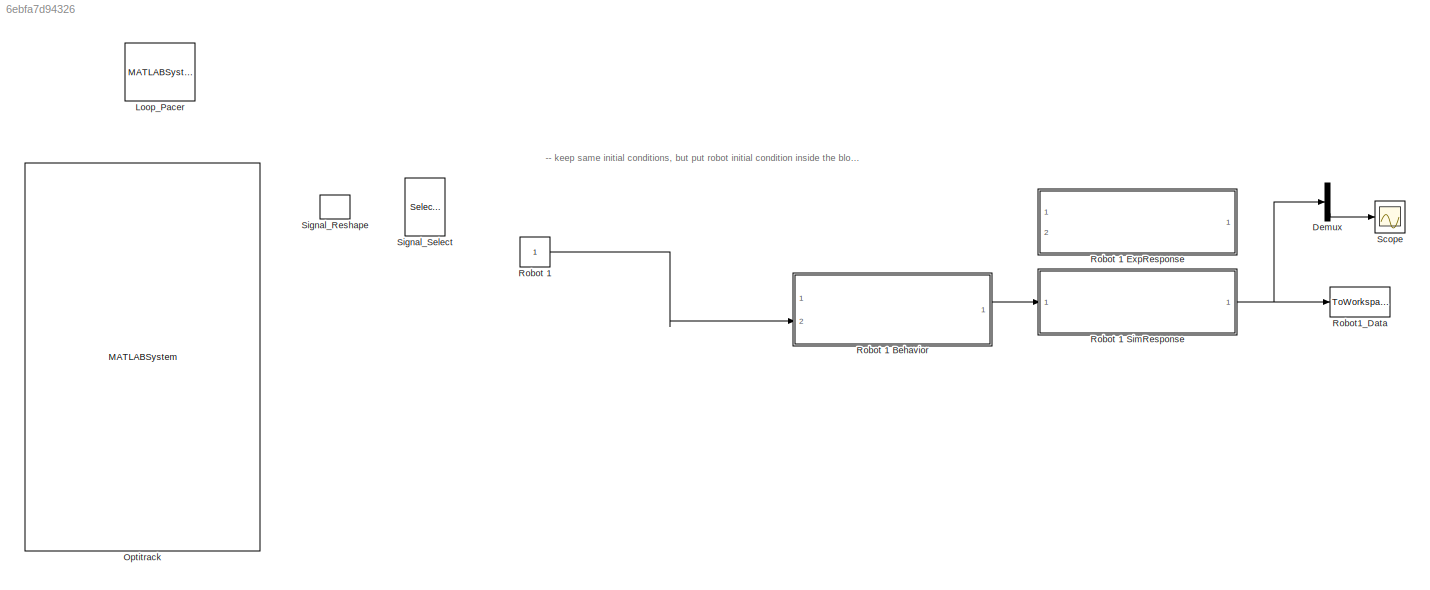
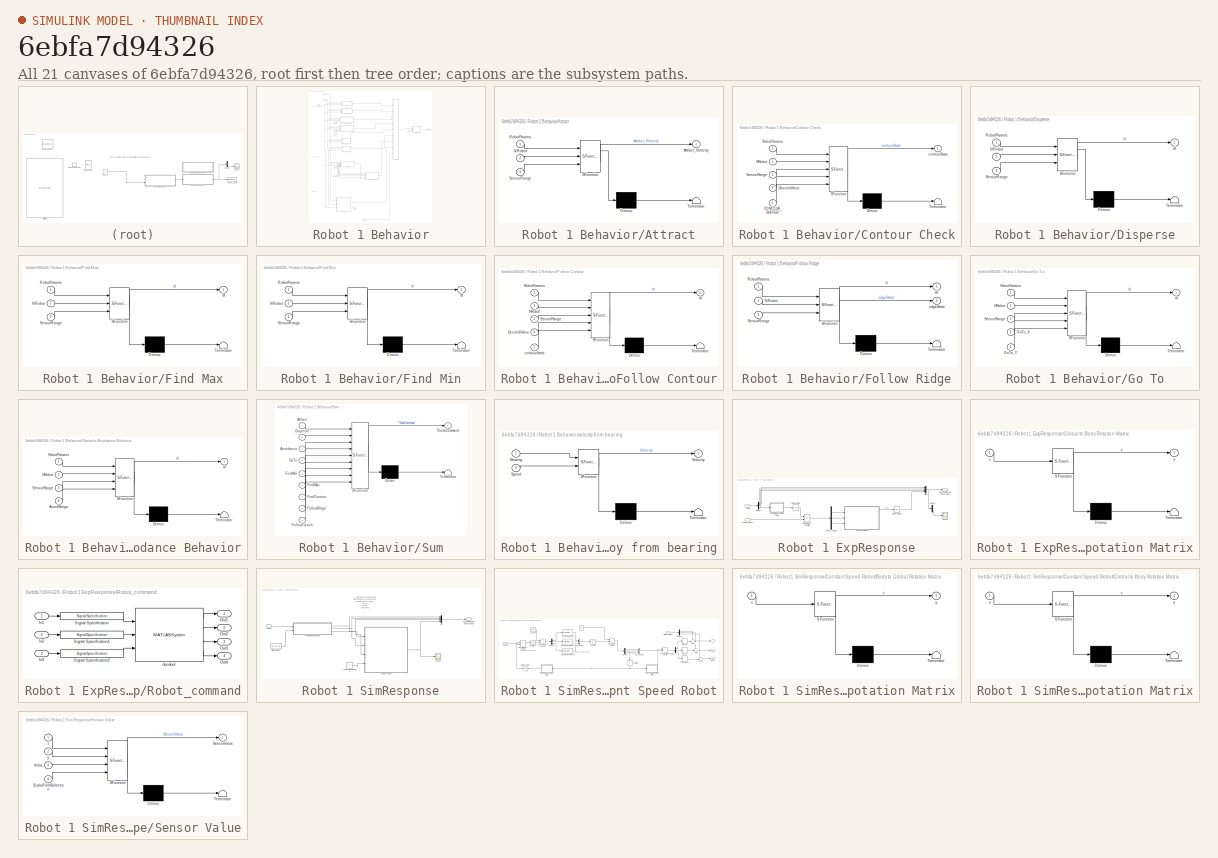
[diagram: thumbnail index - all 21 canvases of the model, root first then tree order]
MODEL slx_6ebfa7d94326
KIND model
CONFIG AbsTol = auto
CONFIG EnableMultiTasking = off
CONFIG FixedStep = 0.1
CONFIG MaxStep = auto
CONFIG MinStep = auto
CONFIG RelTol = 1e-3
CONFIG SampleTimeConstraint = Unconstrained
CONFIG Solver = VariableStepAuto
CONFIG SolverName = VariableStepAuto
CONFIG StartTime = 0.0
CONFIG StopTime = 20
BLOCK [Demux] Demux
  DisplayOption = bar
  Ports = [1, 4]
BLOCK [MATLABSystem] Loop_Pacer
  MaskDisplay = disp('LoopPacer');
  MaskType = LoopPacer
  Ports = []
  System = LoopPacer
  debug = on
  loopRate = 0.1
BLOCK [MATLABSystem] Optitrack
  MaskDisplay = disp('OptiTrackRigidBody');
  MaskType = OptiTrackRigidBody
  Ports = []
  System = OptiTrackRigidBody
  coordinateTransformationMatrix = [ 1, 0, 0; 0, 0, 1; 0, -1, 0 ]
  debug = on
  dllPath = <path>
  natNetClientAddress = 127.0.0.1
  natNetHostAddress = 127.0.0.1
  orientationFormat = Euler angles
  rigidBodyNames = { 'Nobody', 'Nobody2' }
  unicast = off
BLOCK [Constant] Robot 1
BLOCK [SubSystem] Robot 1 Behavior
  Ports = [2, 1]
  RequestExecContextInheritance = off
BLOCK [SubSystem] Robot 1 Behavior/Attract
  Commented = on
  ErrorFcn = Stateflow.Translate.translate
  PermitHierarchicalResolution = ExplicitOnly
  Ports = [3, 1]
  RequestExecContextInheritance = off
  SFBlockType = MATLAB Function
  TreatAsAtomicUnit = on
BLOCK [Demux] Robot 1 Behavior/Attract/ Demux 
  Outputs = 1
  Ports = [1, 1]
BLOCK [S-Function] Robot 1 Behavior/Attract/ SFunction 
  EnableBusSupport = on
  FunctionName = sf_sfun
  PortCounts = [3 2]
  Ports = [3, 2]
  SFcnIsStateOwnerBlock = off
  SFunctionDeploymentMode = off
  Tag = Stateflow S-Function Swarm_Robot_Base_2018b 131
BLOCK [Terminator] Robot 1 Behavior/Attract/ Terminator 
BLOCK [Outport] Robot 1 Behavior/Attract/Attract_Velocity
  IconDisplay = Port number
BLOCK [Inport] Robot 1 Behavior/Attract/NRobot
  IconDisplay = Port number
  Port = 2
BLOCK [Inport] Robot 1 Behavior/Attract/RobotParams
  IconDisplay = Port number
BLOCK [Inport] Robot 1 Behavior/Attract/SensorRange
  IconDisplay = Port number
  Port = 3
BLOCK [Constant] Robot 1 Behavior/Avoid Range
  Value = 0.6
BLOCK [Constant] Robot 1 Behavior/Constant9
  Commented = on
  Value = [0 0 0]
BLOCK [Constant] Robot 1 Behavior/Contour Buffer
BLOCK [SubSystem] Robot 1 Behavior/Contour Check
  ErrorFcn = Stateflow.Translate.translate
  PermitHierarchicalResolution = ExplicitOnly
  Ports = [5, 1]
  RequestExecContextInheritance = off
  SFBlockType = MATLAB Function
  TreatAsAtomicUnit = on
BLOCK [Demux] Robot 1 Behavior/Contour Check/ Demux 
  Outputs = 1
  Ports = [1, 1]
BLOCK [S-Function] Robot 1 Behavior/Contour Check/ SFunction 
  EnableBusSupport = on
  FunctionName = sf_sfun
  PortCounts = [5 2]
  Ports = [5, 2]
  SFcnIsStateOwnerBlock = off
  SFunctionDeploymentMode = off
  Tag = Stateflow S-Function Swarm_Robot_Base_2018b 1
BLOCK [Terminator] Robot 1 Behavior/Contour Check/ Terminator 
BLOCK [Inport] Robot 1 Behavior/Contour Check/CONTOUR_BUFFER
  IconDisplay = Port number
  Port = 5
BLOCK [Inport] Robot 1 Behavior/Contour Check/DesiredValue
  IconDisplay = Port number
  Port = 4
BLOCK [Inport] Robot 1 Behavior/Contour Check/NRobot
  IconDisplay = Port number
  Port = 2
BLOCK [Inport] Robot 1 Behavior/Contour Check/RobotParams
  IconDisplay = Port number
BLOCK [Inport] Robot 1 Behavior/Contour Check/SensorRange
  IconDisplay = Port number
  Port = 3
BLOCK [Outport] Robot 1 Behavior/Contour Check/contourState
  IconDisplay = Port number
BLOCK [Constant] Robot 1 Behavior/Desired Value
  Value = 2
BLOCK [SubSystem] Robot 1 Behavior/Disperse
  Commented = on
  ErrorFcn = Stateflow.Translate.translate
  PermitHierarchicalResolution = ExplicitOnly
  Ports = [3, 1]
  RequestExecContextInheritance = off
  SFBlockType = MATLAB Function
  TreatAsAtomicUnit = on
BLOCK [Demux] Robot 1 Behavior/Disperse/ Demux 
  Outputs = 1
  Ports = [1, 1]
BLOCK [S-Function] Robot 1 Behavior/Disperse/ SFunction 
  EnableBusSupport = on
  FunctionName = sf_sfun
  PortCounts = [3 2]
  Ports = [3, 2]
  SFcnIsStateOwnerBlock = off
  SFunctionDeploymentMode = off
  Tag = Stateflow S-Function Swarm_Robot_Base_2018b 13
BLOCK [Terminator] Robot 1 Behavior/Disperse/ Terminator 
BLOCK [Inport] Robot 1 Behavior/Disperse/NRobot
  IconDisplay = Port number
  Port = 2
BLOCK [Inport] Robot 1 Behavior/Disperse/RobotParams
  IconDisplay = Port number
BLOCK [Inport] Robot 1 Behavior/Disperse/SensorRange
  IconDisplay = Port number
  Port = 3
BLOCK [Outport] Robot 1 Behavior/Disperse/Vf
  IconDisplay = Port number
BLOCK [SubSystem] Robot 1 Behavior/Find Max
  Commented = on
  ErrorFcn = Stateflow.Translate.translate
  PermitHierarchicalResolution = ExplicitOnly
  Ports = [3, 1]
  RequestExecContextInheritance = off
  SFBlockType = MATLAB Function
  TreatAsAtomicUnit = on
BLOCK [Demux] Robot 1 Behavior/Find Max/ Demux 
  Outputs = 1
  Ports = [1, 1]
BLOCK [S-Function] Robot 1 Behavior/Find Max/ SFunction 
  EnableBusSupport = on
  FunctionName = sf_sfun
  PortCounts = [3 2]
  Ports = [3, 2]
  SFcnIsStateOwnerBlock = off
  SFunctionDeploymentMode = off
  Tag = Stateflow S-Function Swarm_Robot_Base_2018b 2
BLOCK [Terminator] Robot 1 Behavior/Find Max/ Terminator 
BLOCK [Inport] Robot 1 Behavior/Find Max/NRobot
  IconDisplay = Port number
  Port = 2
BLOCK [Inport] Robot 1 Behavior/Find Max/RobotParams
  IconDisplay = Port number
BLOCK [Inport] Robot 1 Behavior/Find Max/SensorRange
  IconDisplay = Port number
  Port = 3
BLOCK [Outport] Robot 1 Behavior/Find Max/Vf
  IconDisplay = Port number
BLOCK [SubSystem] Robot 1 Behavior/Find Min
  Commented = on
  ErrorFcn = Stateflow.Translate.translate
  PermitHierarchicalResolution = ExplicitOnly
  Ports = [3, 1]
  RequestExecContextInheritance = off
  SFBlockType = MATLAB Function
  TreatAsAtomicUnit = on
BLOCK [Demux] Robot 1 Behavior/Find Min/ Demux 
  Outputs = 1
  Ports = [1, 1]
BLOCK [S-Function] Robot 1 Behavior/Find Min/ SFunction 
  EnableBusSupport = on
  FunctionName = sf_sfun
  PortCounts = [3 2]
  Ports = [3, 2]
  SFcnIsStateOwnerBlock = off
  SFunctionDeploymentMode = off
  Tag = Stateflow S-Function Swarm_Robot_Base_2018b 111
BLOCK [Terminator] Robot 1 Behavior/Find Min/ Terminator 
BLOCK [Inport] Robot 1 Behavior/Find Min/NRobot
  IconDisplay = Port number
  Port = 2
BLOCK [Inport] Robot 1 Behavior/Find Min/RobotParams
  IconDisplay = Port number
BLOCK [Inport] Robot 1 Behavior/Find Min/SensorRange
  IconDisplay = Port number
  Port = 3
BLOCK [Outport] Robot 1 Behavior/Find Min/Vf
  IconDisplay = Port number
BLOCK [SubSystem] Robot 1 Behavior/Follow Contour
  ErrorFcn = Stateflow.Translate.translate
  PermitHierarchicalResolution = ExplicitOnly
  Ports = [5, 1]
  RequestExecContextInheritance = off
  SFBlockType = MATLAB Function
  TreatAsAtomicUnit = on
BLOCK [Demux] Robot 1 Behavior/Follow Contour/ Demux 
  Outputs = 1
  Ports = [1, 1]
BLOCK [S-Function] Robot 1 Behavior/Follow Contour/ SFunction 
  EnableBusSupport = on
  FunctionName = sf_sfun
  PortCounts = [5 2]
  Ports = [5, 2]
  SFcnIsStateOwnerBlock = off
  SFunctionDeploymentMode = off
  Tag = Stateflow S-Function Swarm_Robot_Base_2018b 6
BLOCK [Terminator] Robot 1 Behavior/Follow Contour/ Terminator 
BLOCK [Inport] Robot 1 Behavior/Follow Contour/DesiredValue
  IconDisplay = Port number
  Port = 4
BLOCK [Inport] Robot 1 Behavior/Follow Contour/NRobot
  IconDisplay = Port number
  Port = 2
BLOCK [Inport] Robot 1 Behavior/Follow Contour/RobotParams
  IconDisplay = Port number
BLOCK [Inport] Robot 1 Behavior/Follow Contour/SensorRange
  IconDisplay = Port number
  Port = 3
BLOCK [Outport] Robot 1 Behavior/Follow Contour/Vf
  IconDisplay = Port number
BLOCK [Inport] Robot 1 Behavior/Follow Contour/contourState
  IconDisplay = Port number
  Port = 5
BLOCK [SubSystem] Robot 1 Behavior/Follow Ridge
  Commented = on
  ErrorFcn = Stateflow.Translate.translate
  PermitHierarchicalResolution = ExplicitOnly
  Ports = [3, 2]
  RequestExecContextInheritance = off
  SFBlockType = MATLAB Function
  TreatAsAtomicUnit = on
BLOCK [Demux] Robot 1 Behavior/Follow Ridge/ Demux 
  Outputs = 1
  Ports = [1, 1]
BLOCK [S-Function] Robot 1 Behavior/Follow Ridge/ SFunction 
  EnableBusSupport = on
  FunctionName = sf_sfun
  PortCounts = [3 3]
  Ports = [3, 3]
  SFcnIsStateOwnerBlock = off
  SFunctionDeploymentMode = off
  Tag = Stateflow S-Function Swarm_Robot_Base_2018b 10
BLOCK [Terminator] Robot 1 Behavior/Follow Ridge/ Terminator 
BLOCK [Inport] Robot 1 Behavior/Follow Ridge/NRobot
  IconDisplay = Port number
  Port = 2
BLOCK [Inport] Robot 1 Behavior/Follow Ridge/RobotParams
  IconDisplay = Port number
BLOCK [Inport] Robot 1 Behavior/Follow Ridge/SensorRange
  IconDisplay = Port number
  Port = 3
BLOCK [Outport] Robot 1 Behavior/Follow Ridge/Vf
  IconDisplay = Port number
BLOCK [Outport] Robot 1 Behavior/Follow Ridge/ridgeState
  IconDisplay = Port number
  Port = 2
BLOCK [SubSystem] Robot 1 Behavior/Go To
  Commented = on
  ErrorFcn = Stateflow.Translate.translate
  PermitHierarchicalResolution = ExplicitOnly
  Ports = [5, 1]
  RequestExecContextInheritance = off
  SFBlockType = MATLAB Function
  TreatAsAtomicUnit = on
BLOCK [Demux] Robot 1 Behavior/Go To/ Demux 
  Outputs = 1
  Ports = [1, 1]
BLOCK [S-Function] Robot 1 Behavior/Go To/ SFunction 
  EnableBusSupport = on
  FunctionName = sf_sfun
  PortCounts = [5 2]
  Ports = [5, 2]
  SFcnIsStateOwnerBlock = off
  SFunctionDeploymentMode = off
  Tag = Stateflow S-Function Swarm_Robot_Base_2018b 9
BLOCK [Terminator] Robot 1 Behavior/Go To/ Terminator 
BLOCK [Inport] Robot 1 Behavior/Go To/GoTo_X
  IconDisplay = Port number
  Port = 4
BLOCK [Inport] Robot 1 Behavior/Go To/GoTo_Y
  IconDisplay = Port number
  Port = 5
BLOCK [Inport] Robot 1 Behavior/Go To/NRobot
  IconDisplay = Port number
  Port = 2
BLOCK [Inport] Robot 1 Behavior/Go To/RobotParams
  IconDisplay = Port number
BLOCK [Inport] Robot 1 Behavior/Go To/SensorRange
  IconDisplay = Port number
  Port = 3
BLOCK [Outport] Robot 1 Behavior/Go To/Vf
  IconDisplay = Port number
BLOCK [Constant] Robot 1 Behavior/GoTo_X
  Value = 50
BLOCK [Constant] Robot 1 Behavior/GoTo_Y
  Value = 50
BLOCK [SubSystem] Robot 1 Behavior/Obstacle Avoidance Behavior
  ErrorFcn = Stateflow.Translate.translate
  PermitHierarchicalResolution = ExplicitOnly
  Ports = [4, 1]
  RequestExecContextInheritance = off
  SFBlockType = MATLAB Function
  TreatAsAtomicUnit = on
BLOCK [Demux] Robot 1 Behavior/Obstacle Avoidance Behavior/ Demux 
  Outputs = 1
  Ports = [1, 1]
BLOCK [S-Function] Robot 1 Behavior/Obstacle Avoidance Behavior/ SFunction 
  EnableBusSupport = on
  FunctionName = sf_sfun
  PortCounts = [4 2]
  Ports = [4, 2]
  SFcnIsStateOwnerBlock = off
  SFunctionDeploymentMode = off
  Tag = Stateflow S-Function Swarm_Robot_Base_2018b 18
BLOCK [Terminator] Robot 1 Behavior/Obstacle Avoidance Behavior/ Terminator 
BLOCK [Inport] Robot 1 Behavior/Obstacle Avoidance Behavior/AvoidRange
  IconDisplay = Port number
  Port = 4
BLOCK [Inport] Robot 1 Behavior/Obstacle Avoidance Behavior/NRobot
  IconDisplay = Port number
  Port = 2
BLOCK [Inport] Robot 1 Behavior/Obstacle Avoidance Behavior/RobotParams
  IconDisplay = Port number
BLOCK [Inport] Robot 1 Behavior/Obstacle Avoidance Behavior/SensorRange
  IconDisplay = Port number
  Port = 3
BLOCK [Outport] Robot 1 Behavior/Obstacle Avoidance Behavior/Vf
  IconDisplay = Port number
BLOCK [Inport] Robot 1 Behavior/Position
  IconDisplay = Port number
BLOCK [Constant] Robot 1 Behavior/Robot Speed
BLOCK [Inport] Robot 1 Behavior/RobotNum
  IconDisplay = Port number
  Port = 2
BLOCK [Scope] Robot 1 Behavior/Scope4
  Commented = on
  Floating = off
  NumInputPorts = 1
  Ports = [1]
  ScopeSpecificationString = Simulink.scopes.TimeScopeBlockCfg('CurrentConfiguration', extmgr.ConfigurationSet(extmgr.Configuration('Core','General UI',true),extmgr.Configuration('Core','Source UI',true),extmgr.Configuration('Sources','WiredSimulink',true,'DataLoggingVariableName','ScopeData2','DataLoggingLimitDataPoints',true,'DataLoggingSaveFormat','Array','DataLoggingDecimation','1','DataLoggingDecimateData',true),extmgr.C...<+165ch>
BLOCK [Constant] Robot 1 Behavior/Sensor Range
  Value = 1000
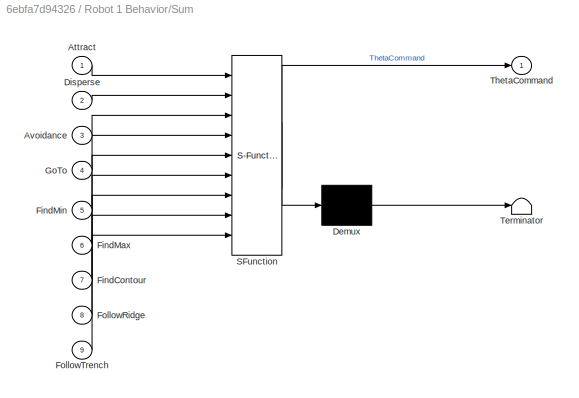
BLOCK [SubSystem] Robot 1 Behavior/Sum
  ErrorFcn = Stateflow.Translate.translate
  PermitHierarchicalResolution = ExplicitOnly
  Ports = [9, 1]
  RequestExecContextInheritance = off
  SFBlockType = MATLAB Function
  TreatAsAtomicUnit = on
BLOCK [Demux] Robot 1 Behavior/Sum/ Demux 
  Outputs = 1
  Ports = [1, 1]
BLOCK [S-Function] Robot 1 Behavior/Sum/ SFunction 
  EnableBusSupport = on
  FunctionName = sf_sfun
  PortCounts = [9 2]
  Ports = [9, 2]
  SFcnIsStateOwnerBlock = off
  SFunctionDeploymentMode = off
  Tag = Stateflow S-Function Swarm_Robot_Base_2018b 141
BLOCK [Terminator] Robot 1 Behavior/Sum/ Terminator 
BLOCK [Inport] Robot 1 Behavior/Sum/Attract
  IconDisplay = Port number
BLOCK [Inport] Robot 1 Behavior/Sum/Avoidance
  IconDisplay = Port number
  Port = 3
BLOCK [Inport] Robot 1 Behavior/Sum/Disperse
  IconDisplay = Port number
  Port = 2
BLOCK [Inport] Robot 1 Behavior/Sum/FindContour
  IconDisplay = Port number
  Port = 7
BLOCK [Inport] Robot 1 Behavior/Sum/FindMax
  IconDisplay = Port number
  Port = 6
BLOCK [Inport] Robot 1 Behavior/Sum/FindMin
  IconDisplay = Port number
  Port = 5
BLOCK [Inport] Robot 1 Behavior/Sum/FollowRidge
  IconDisplay = Port number
  Port = 8
BLOCK [Inport] Robot 1 Behavior/Sum/FollowTrench
  IconDisplay = Port number
  Port = 9
BLOCK [Inport] Robot 1 Behavior/Sum/GoTo
  IconDisplay = Port number
  Port = 4
BLOCK [Outport] Robot 1 Behavior/Sum/ThetaCommand
  IconDisplay = Port number
BLOCK [Outport] Robot 1 Behavior/Velocity_Global
  IconDisplay = Port number
BLOCK [SubSystem] Robot 1 Behavior/velocity from bearing
  ErrorFcn = Stateflow.Translate.translate
  PermitHierarchicalResolution = ExplicitOnly
  Ports = [2, 1]
  RequestExecContextInheritance = off
  SFBlockType = MATLAB Function
  TreatAsAtomicUnit = on
BLOCK [Demux] Robot 1 Behavior/velocity from bearing/ Demux 
  Outputs = 1
  Ports = [1, 1]
BLOCK [S-Function] Robot 1 Behavior/velocity from bearing/ SFunction 
  EnableBusSupport = on
  FunctionName = sf_sfun
  PortCounts = [2 2]
  Ports = [2, 2]
  SFcnIsStateOwnerBlock = off
  SFunctionDeploymentMode = off
  Tag = Stateflow S-Function Swarm_Robot_Base_2018b 144
BLOCK [Terminator] Robot 1 Behavior/velocity from bearing/ Terminator 
BLOCK [Inport] Robot 1 Behavior/velocity from bearing/Bearing
  IconDisplay = Port number
BLOCK [Inport] Robot 1 Behavior/velocity from bearing/Speed
  IconDisplay = Port number
  Port = 2
BLOCK [Outport] Robot 1 Behavior/velocity from bearing/Velocity
  IconDisplay = Port number
BLOCK [SubSystem] Robot 1 ExpResponse
  Ports = [2, 1]
  RequestExecContextInheritance = off
BLOCK [Demux] Robot 1 ExpResponse/Demux
  DisplayOption = bar
  Ports = [1, 4]
BLOCK [Demux] Robot 1 ExpResponse/Demux4
  DisplayOption = bar
  Outputs = 3
  Ports = [1, 3]
BLOCK [Demux] Robot 1 ExpResponse/Demux_velocity
  DisplayOption = bar
  Outputs = 3
  Ports = [1, 3]
BLOCK [SubSystem] Robot 1 ExpResponse/Global to Body Rotation Matrix
  ErrorFcn = Stateflow.Translate.translate
  PermitHierarchicalResolution = ExplicitOnly
  Ports = [1, 1]
  RequestExecContextInheritance = off
  SFBlockType = MATLAB Function
  TreatAsAtomicUnit = on
BLOCK [Demux] Robot 1 ExpResponse/Global to Body Rotation Matrix/ Demux 
  Outputs = 1
  Ports = [1, 1]
BLOCK [S-Function] Robot 1 ExpResponse/Global to Body Rotation Matrix/ SFunction 
  EnableBusSupport = off
  FunctionName = sf_sfun
  PortCounts = [1 2]
  Ports = [1, 2]
  SFcnIsStateOwnerBlock = off
  SFunctionDeploymentMode = off
  Tag = Stateflow S-Function Swarm_Robot_Base_2018b 5
BLOCK [Terminator] Robot 1 ExpResponse/Global to Body Rotation Matrix/ Terminator 
BLOCK [Inport] Robot 1 ExpResponse/Global to Body Rotation Matrix/u
  IconDisplay = Port number
BLOCK [Outport] Robot 1 ExpResponse/Global to Body Rotation Matrix/y
  IconDisplay = Port number
BLOCK [Product] Robot 1 ExpResponse/Global to Body Velocities
  InputSameDT = off
  Multiplication = Matrix(*)
  OutDataTypeStr = Inherit: Inherit via internal rule
  Ports = [2, 1]
  RndMeth = Floor
  SaturateOnIntegerOverflow = off
BLOCK [Math] Robot 1 ExpResponse/Math Function
  Operator = transpose
  Ports = [1, 1]
BLOCK [Math] Robot 1 ExpResponse/Math Function1
  Operator = log
  Ports = [1, 1]
BLOCK [Mux] Robot 1 ExpResponse/Mux
  DisplayOption = bar
  Ports = [4, 1]
BLOCK [Inport] Robot 1 ExpResponse/Position
  IconDisplay = Port number
  Port = 2
BLOCK [Outport] Robot 1 ExpResponse/Robot Position and Sensor Value 
  IconDisplay = Port number
BLOCK [SubSystem] Robot 1 ExpResponse/Robot_command
  Ports = [3, 4]
  RequestExecContextInheritance = off
BLOCK [Inport] Robot 1 ExpResponse/Robot_command/In1
  IconDisplay = Port number
BLOCK [Inport] Robot 1 ExpResponse/Robot_command/In2
  IconDisplay = Port number
  Port = 2
BLOCK [Inport] Robot 1 ExpResponse/Robot_command/In3
  IconDisplay = Port number
  Port = 3
BLOCK [Outport] Robot 1 ExpResponse/Robot_command/Out1
  IconDisplay = Port number
BLOCK [Outport] Robot 1 ExpResponse/Robot_command/Out2
  IconDisplay = Port number
  Port = 2
BLOCK [Outport] Robot 1 ExpResponse/Robot_command/Out3
  IconDisplay = Port number
  Port = 3
BLOCK [Outport] Robot 1 ExpResponse/Robot_command/Out4
  IconDisplay = Port number
  Port = 4
BLOCK [SignalSpecification] Robot 1 ExpResponse/Robot_command/Signal Specification
  Dimensions = 1
  OutDataTypeStr = double
  SignalType = real
  VarSizeSig = No
BLOCK [SignalSpecification] Robot 1 ExpResponse/Robot_command/Signal Specification1
  Dimensions = 1
  OutDataTypeStr = double
  SignalType = real
  VarSizeSig = No
BLOCK [SignalSpecification] Robot 1 ExpResponse/Robot_command/Signal Specification2
  Dimensions = 1
  OutDataTypeStr = double
  SignalType = real
  VarSizeSig = No
BLOCK [MATLABSystem] Robot 1 ExpResponse/Robot_command/decabot
  MaskDisplay = disp('\n\nDH: localhost');\nport_label('input',1,'x_vel');\nport_label('input',2,'y_vel');\nport_label('input',3,'t_vel');\nport_label('output',1,'clear');\nport_label('output',2,'red');\nport_label('output',3,'green');\nport_label('output',4,'blue');
  MaskType = Decabot
  Ports = [3, 4]
  System = Decabot
  debug = off
  decabotHelper = localhost
  useDataTurbine = off
  useDirectSocket = on
BLOCK [Scope] Robot 1 ExpResponse/Scope
  Floating = off
  NumInputPorts = 1
  Ports = [1]
  ScopeSpecificationString = Simulink.scopes.TimeScopeBlockCfg('CurrentConfiguration', extmgr.ConfigurationSet(extmgr.Configuration('Core','General UI',true),extmgr.Configuration('Core','Source UI',true),extmgr.Configuration('Sources','WiredSimulink',true,'DataLoggingVariableName','ScopeData2','DataLoggingLimitDataPoints',true,'DataLoggingSaveFormat','Array','DataLoggingDecimation','1','DataLoggingDecimateData',true),extmgr.C...<+183ch>
BLOCK [Inport] Robot 1 ExpResponse/Velocity_Global
  IconDisplay = Port number
BLOCK [SubSystem] Robot 1 SimResponse
  Ports = [1, 1]
  RequestExecContextInheritance = off
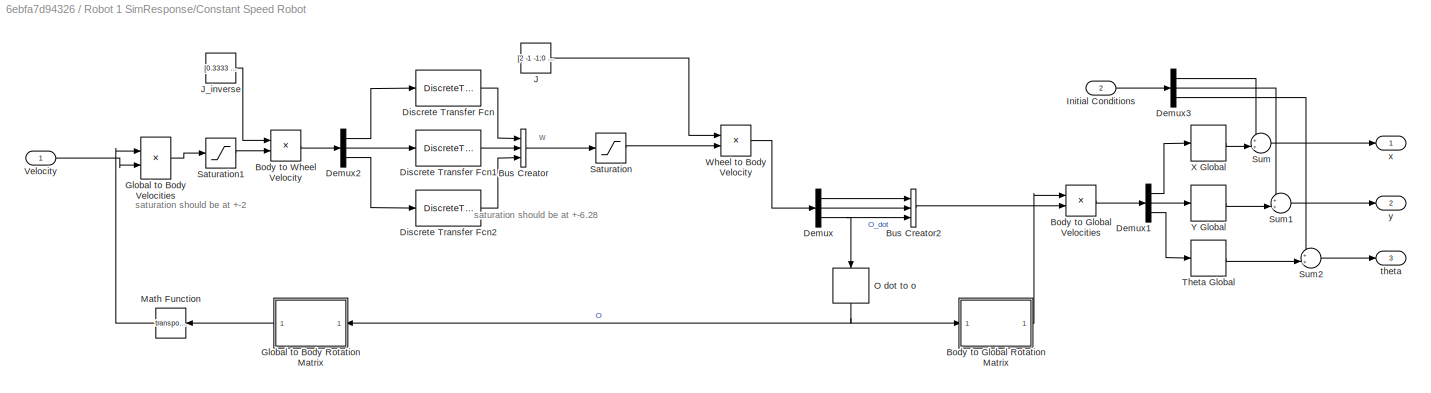
BLOCK [SubSystem] Robot 1 SimResponse/Constant Speed Robot
  Ports = [2, 3]
  RequestExecContextInheritance = off
BLOCK [SubSystem] Robot 1 SimResponse/Constant Speed Robot/Body to Global Rotation Matrix
  ErrorFcn = Stateflow.Translate.translate
  PermitHierarchicalResolution = ExplicitOnly
  Ports = [1, 1]
  RequestExecContextInheritance = off
  SFBlockType = MATLAB Function
  TreatAsAtomicUnit = on
BLOCK [Demux] Robot 1 SimResponse/Constant Speed Robot/Body to Global Rotation Matrix/ Demux 
  Outputs = 1
  Ports = [1, 1]
BLOCK [S-Function] Robot 1 SimResponse/Constant Speed Robot/Body to Global Rotation Matrix/ SFunction 
  EnableBusSupport = on
  FunctionName = sf_sfun
  PortCounts = [1 2]
  Ports = [1, 2]
  SFcnIsStateOwnerBlock = off
  SFunctionDeploymentMode = off
  Tag = Stateflow S-Function Swarm_Robot_Base_2018b 142
BLOCK [Terminator] Robot 1 SimResponse/Constant Speed Robot/Body to Global Rotation Matrix/ Terminator 
BLOCK [Inport] Robot 1 SimResponse/Constant Speed Robot/Body to Global Rotation Matrix/u
  IconDisplay = Port number
BLOCK [Outport] Robot 1 SimResponse/Constant Speed Robot/Body to Global Rotation Matrix/y
  IconDisplay = Port number
BLOCK [Product] Robot 1 SimResponse/Constant Speed Robot/Body to Global Velocities
  InputSameDT = off
  Multiplication = Matrix(*)
  OutDataTypeStr = Inherit: Inherit via internal rule
  Ports = [2, 1]
  RndMeth = Floor
  SaturateOnIntegerOverflow = off
BLOCK [Product] Robot 1 SimResponse/Constant Speed Robot/Body to Wheel Velocity
  InputSameDT = off
  Multiplication = Matrix(*)
  OutDataTypeStr = Inherit: Inherit via internal rule
  Ports = [2, 1]
  RndMeth = Floor
  SaturateOnIntegerOverflow = off
BLOCK [BusCreator] Robot 1 SimResponse/Constant Speed Robot/Bus Creator
  DisplayOption = bar
  InheritFromInputs = on
  Inputs = 3
  Ports = [3, 1]
BLOCK [BusCreator] Robot 1 SimResponse/Constant Speed Robot/Bus Creator2
  DisplayOption = bar
  InheritFromInputs = on
  Inputs = 3
  Ports = [3, 1]
BLOCK [Demux] Robot 1 SimResponse/Constant Speed Robot/Demux
  DisplayOption = bar
  Outputs = 3
  Ports = [1, 3]
BLOCK [Demux] Robot 1 SimResponse/Constant Speed Robot/Demux1
  DisplayOption = bar
  Outputs = 3
  Ports = [1, 3]
BLOCK [Demux] Robot 1 SimResponse/Constant Speed Robot/Demux2
  DisplayOption = bar
  Outputs = 3
  Ports = [1, 3]
BLOCK [Demux] Robot 1 SimResponse/Constant Speed Robot/Demux3
  DisplayOption = bar
  Outputs = 3
  Ports = [1, 3]
BLOCK [DiscreteTransferFcn] Robot 1 SimResponse/Constant Speed Robot/Discrete Transfer Fcn
  Denominator = [1 -0.9]
  InputPortMap = u0
  Numerator = [1 0]
  Ports = [1, 1]
BLOCK [DiscreteTransferFcn] Robot 1 SimResponse/Constant Speed Robot/Discrete Transfer Fcn1
  Denominator = [1 -0.9]
  InputPortMap = u0
  Numerator = [1 0]
  Ports = [1, 1]
BLOCK [DiscreteTransferFcn] Robot 1 SimResponse/Constant Speed Robot/Discrete Transfer Fcn2
  Denominator = [1 -0.9]
  InputPortMap = u0
  Numerator = [1 0]
  Ports = [1, 1]
BLOCK [SubSystem] Robot 1 SimResponse/Constant Speed Robot/Global to Body Rotation Matrix
  ErrorFcn = Stateflow.Translate.translate
  PermitHierarchicalResolution = ExplicitOnly
  Ports = [1, 1]
  RequestExecContextInheritance = off
  SFBlockType = MATLAB Function
  TreatAsAtomicUnit = on
BLOCK [Demux] Robot 1 SimResponse/Constant Speed Robot/Global to Body Rotation Matrix/ Demux 
  Outputs = 1
  Ports = [1, 1]
BLOCK [S-Function] Robot 1 SimResponse/Constant Speed Robot/Global to Body Rotation Matrix/ SFunction 
  EnableBusSupport = off
  FunctionName = sf_sfun
  PortCounts = [1 2]
  Ports = [1, 2]
  SFcnIsStateOwnerBlock = off
  SFunctionDeploymentMode = off
  Tag = Stateflow S-Function Swarm_Robot_Base_2018b 4
BLOCK [Terminator] Robot 1 SimResponse/Constant Speed Robot/Global to Body Rotation Matrix/ Terminator 
BLOCK [Inport] Robot 1 SimResponse/Constant Speed Robot/Global to Body Rotation Matrix/u
  IconDisplay = Port number
BLOCK [Outport] Robot 1 SimResponse/Constant Speed Robot/Global to Body Rotation Matrix/y
  IconDisplay = Port number
BLOCK [Product] Robot 1 SimResponse/Constant Speed Robot/Global to Body Velocities
  InputSameDT = off
  Multiplication = Matrix(*)
  OutDataTypeStr = Inherit: Inherit via internal rule
  Ports = [2, 1]
  RndMeth = Floor
  SaturateOnIntegerOverflow = off
BLOCK [Inport] Robot 1 SimResponse/Constant Speed Robot/Initial Conditions
  IconDisplay = Port number
  Port = 2
BLOCK [Constant] Robot 1 SimResponse/Constant Speed Robot/J
  Value = [2 -1 -1;0 -1.734 1.734; -.1 -.1 -.1]
BLOCK [Constant] Robot 1 SimResponse/Constant Speed Robot/J_inverse
  Value = [0.3333    0.0000   -3.3333\n ;  -0.1667   -0.2884   -3.3333\n ;  -0.1667    0.2884   -3.3333]
BLOCK [Math] Robot 1 SimResponse/Constant Speed Robot/Math Function
  Operator = transpose
  Ports = [1, 1]
BLOCK [DiscreteIntegrator] Robot 1 SimResponse/Constant Speed Robot/O dot to o
  ICPrevOutput = DiscIntNeverNeededParam
  ICPrevScaledInput = DiscIntNeverNeededParam
  InitialConditionSetting = Auto
  Ports = [1, 1]
  SampleTime = -1
BLOCK [Saturate] Robot 1 SimResponse/Constant Speed Robot/Saturation
  InputPortMap = u0
  LowerLimit = -6.28
  Ports = [1, 1]
  UpperLimit = 6.28
BLOCK [Saturate] Robot 1 SimResponse/Constant Speed Robot/Saturation1
  InputPortMap = u0
  LowerLimit = -2
  Ports = [1, 1]
  UpperLimit = 2
BLOCK [Sum] Robot 1 SimResponse/Constant Speed Robot/Sum
  IconShape = round
  InputSameDT = off
  Inputs = ++|
  OutDataTypeStr = Inherit: Inherit via internal rule
  Ports = [2, 1]
  SaturateOnIntegerOverflow = off
BLOCK [Sum] Robot 1 SimResponse/Constant Speed Robot/Sum1
  IconShape = round
  InputSameDT = off
  Inputs = ++|
  OutDataTypeStr = Inherit: Inherit via internal rule
  Ports = [2, 1]
  SaturateOnIntegerOverflow = off
BLOCK [Sum] Robot 1 SimResponse/Constant Speed Robot/Sum2
  IconShape = round
  InputSameDT = off
  Inputs = ++|
  OutDataTypeStr = Inherit: Inherit via internal rule
  Ports = [2, 1]
  SaturateOnIntegerOverflow = off
BLOCK [DiscreteIntegrator] Robot 1 SimResponse/Constant Speed Robot/Theta Global
  ICPrevOutput = DiscIntNeverNeededParam
  ICPrevScaledInput = DiscIntNeverNeededParam
  InitialConditionSetting = Auto
  Ports = [1, 1]
  SampleTime = -1
BLOCK [Inport] Robot 1 SimResponse/Constant Speed Robot/Velocity
  IconDisplay = Port number
BLOCK [Product] Robot 1 SimResponse/Constant Speed Robot/Wheel to Body Velocity
  InputSameDT = off
  Multiplication = Matrix(*)
  OutDataTypeStr = Inherit: Inherit via internal rule
  Ports = [2, 1]
  RndMeth = Floor
  SaturateOnIntegerOverflow = off
BLOCK [DiscreteIntegrator] Robot 1 SimResponse/Constant Speed Robot/X Global 
  ICPrevOutput = DiscIntNeverNeededParam
  ICPrevScaledInput = DiscIntNeverNeededParam
  InitialConditionSetting = Auto
  Ports = [1, 1]
  SampleTime = -1
BLOCK [DiscreteIntegrator] Robot 1 SimResponse/Constant Speed Robot/Y Global
  ICPrevOutput = DiscIntNeverNeededParam
  ICPrevScaledInput = DiscIntNeverNeededParam
  InitialConditionSetting = Auto
  Ports = [1, 1]
  SampleTime = -1
BLOCK [Outport] Robot 1 SimResponse/Constant Speed Robot/theta
  IconDisplay = Port number
  Port = 3
BLOCK [Outport] Robot 1 SimResponse/Constant Speed Robot/x
  IconDisplay = Port number
BLOCK [Outport] Robot 1 SimResponse/Constant Speed Robot/y
  IconDisplay = Port number
  Port = 2
BLOCK [Constant] Robot 1 SimResponse/Initial Conditions
  Value = [5, 5, 0]
BLOCK [Mux] Robot 1 SimResponse/Mux
  DisplayOption = bar
  Ports = [4, 1]
BLOCK [Outport] Robot 1 SimResponse/Robot Position and Sensor Value 
  IconDisplay = Port number
BLOCK [Constant] Robot 1 SimResponse/ScalarFieldSelection
BLOCK [Scope] Robot 1 SimResponse/Scope
  Floating = off
  NumInputPorts = 1
  Ports = [1]
  ScopeSpecificationString = Simulink.scopes.TimeScopeBlockCfg('CurrentConfiguration', extmgr.ConfigurationSet(extmgr.Configuration('Core','General UI',true),extmgr.Configuration('Core','Source UI',true),extmgr.Configuration('Sources','WiredSimulink',true,'DataLoggingVariableName','ScopeData1','DataLoggingLimitDataPoints',true,'DataLoggingSaveFormat','Array','DataLoggingDecimation','1','DataLoggingDecimateData',true),extmgr.C...<+165ch>
BLOCK [SubSystem] Robot 1 SimResponse/Sensor Value
  ErrorFcn = Stateflow.Translate.translate
  PermitHierarchicalResolution = ExplicitOnly
  Ports = [4, 1]
  RequestExecContextInheritance = off
  SFBlockType = MATLAB Function
  TreatAsAtomicUnit = on
BLOCK [Demux] Robot 1 SimResponse/Sensor Value/ Demux 
  Outputs = 1
  Ports = [1, 1]
BLOCK [S-Function] Robot 1 SimResponse/Sensor Value/ SFunction 
  EnableBusSupport = on
  FunctionName = sf_sfun
  PortCounts = [4 2]
  Ports = [4, 2]
  SFcnIsStateOwnerBlock = off
  SFunctionDeploymentMode = off
  Tag = Stateflow S-Function Swarm_Robot_Base_2018b 91
BLOCK [Terminator] Robot 1 SimResponse/Sensor Value/ Terminator 
BLOCK [Inport] Robot 1 SimResponse/Sensor Value/ScalarFieldSelection
  IconDisplay = Port number
  Port = 4
BLOCK [Outport] Robot 1 SimResponse/Sensor Value/SensorValue
  IconDisplay = Port number
BLOCK [Inport] Robot 1 SimResponse/Sensor Value/theta
  IconDisplay = Port number
  Port = 3
BLOCK [Inport] Robot 1 SimResponse/Sensor Value/x
  IconDisplay = Port number
BLOCK [Inport] Robot 1 SimResponse/Sensor Value/y
  IconDisplay = Port number
  Port = 2
BLOCK [Inport] Robot 1 SimResponse/Velocity
  IconDisplay = Port number
BLOCK [ToWorkspace] Robot1_Data
  FixptAsFi = on
  MaxDataPoints = inf
  Ports = [1]
  SampleTime = -1
  Save2DSignal = 3-D array (concatenate along third dimension)
  SaveFormat = Timeseries
  VariableName = Robot1
BLOCK [Scope] Scope
  Floating = off
  NumInputPorts = 1
  Ports = [1]
  ScopeSpecificationString = Simulink.scopes.TimeScopeBlockCfg('CurrentConfiguration', extmgr.ConfigurationSet(extmgr.Configuration('Core','General UI',true),extmgr.Configuration('Core','Source UI',true),extmgr.Configuration('Sources','WiredSimulink',true,'DataLoggingVariableName','ScopeData1'),extmgr.Configuration('Visuals','Time Domain',true,'SerializedDisplays',{struct('MinYLimReal','-10','MaxYLimReal','10','YLabelReal',''...<+767ch>
BLOCK [Reshape] Signal_Reshape
  OutputDimensions = 6
  Ports = [1, 1]
BLOCK [Selector] Signal_Select
  IndexOptions = Index vector (dialog)
  Indices = [1 2 6]
  InputPortWidth = 6
  OutputSizes = 1
  Ports = [1, 1]
ANNOTATION (root): -- keep same initial conditions, but put robot initial condition inside the block --
ANNOTATION Robot 1 Behavior: Contour Finding Architecture
ANNOTATION Robot 1 Behavior: Ridge Following
ANNOTATION Robot 1 SimResponse: -- Robot Sensor Value is added to the Robot Params vector, so that Robot params has values: Global x Global y Global Theta Sensor Value
ANNOTATION Robot 1 SimResponse/Constant Speed Robot: saturation should be at +-2
ANNOTATION Robot 1 SimResponse/Constant Speed Robot: saturation should be at +-6.28
ANNOTATION Robot 1 SimResponse/Constant Speed Robot: w
LINE Demux:4 -> Scope:1
LINE Robot 1 Behavior/Attract:1 -> Robot 1 Behavior/Sum:1
LINE Robot 1 Behavior/Avoid Range:1 -> Robot 1 Behavior/Obstacle Avoidance Behavior:4
LINE Robot 1 Behavior/Constant9:1 -> Robot 1 Behavior/Sum:9
LINE Robot 1 Behavior/Contour Buffer:1 -> Robot 1 Behavior/Contour Check:5
LINE Robot 1 Behavior/Contour Check:1 -> Robot 1 Behavior/Follow Contour:5
NET Robot 1 Behavior/Desired Value:1 -> Robot 1 Behavior/Contour Check:4, Robot 1 Behavior/Follow Contour:4
LINE Robot 1 Behavior/Disperse:1 -> Robot 1 Behavior/Sum:2
LINE Robot 1 Behavior/Find Max:1 -> Robot 1 Behavior/Sum:6
LINE Robot 1 Behavior/Find Min:1 -> Robot 1 Behavior/Sum:5
LINE Robot 1 Behavior/Follow Contour:1 -> Robot 1 Behavior/Sum:7
LINE Robot 1 Behavior/Follow Ridge:1 -> Robot 1 Behavior/Sum:8
LINE Robot 1 Behavior/Follow Ridge:2 -> Robot 1 Behavior/Scope4:1
LINE Robot 1 Behavior/Go To:1 -> Robot 1 Behavior/Sum:4
LINE Robot 1 Behavior/GoTo_X:1 -> Robot 1 Behavior/Go To:4
LINE Robot 1 Behavior/GoTo_Y:1 -> Robot 1 Behavior/Go To:5
LINE Robot 1 Behavior/Obstacle Avoidance Behavior:1 -> Robot 1 Behavior/Sum:3
NET Robot 1 Behavior/Position:1 -> Robot 1 Behavior/Attract:1, Robot 1 Behavior/Contour Check:1, Robot 1 Behavior/Disperse:1, Robot 1 Behavior/Find Max:1, Robot 1 Behavior/Find Min:1, Robot 1 Behavior/Follow Contour:1, Robot 1 Behavior/Follow Ridge:1, Robot 1 Behavior/Go To:1, Robot 1 Behavior/Obstacle Avoidance Behavior:1
LINE Robot 1 Behavior/Robot Speed:1 -> Robot 1 Behavior/velocity from bearing:2
NET Robot 1 Behavior/RobotNum:1 -> Robot 1 Behavior/Attract:2, Robot 1 Behavior/Contour Check:2, Robot 1 Behavior/Disperse:2, Robot 1 Behavior/Find Max:2, Robot 1 Behavior/Find Min:2, Robot 1 Behavior/Follow Contour:2, Robot 1 Behavior/Follow Ridge:2, Robot 1 Behavior/Go To:2, Robot 1 Behavior/Obstacle Avoidance Behavior:2
NET Robot 1 Behavior/Sensor Range:1 -> Robot 1 Behavior/Attract:3, Robot 1 Behavior/Contour Check:3, Robot 1 Behavior/Disperse:3, Robot 1 Behavior/Find Max:3, Robot 1 Behavior/Find Min:3, Robot 1 Behavior/Follow Contour:3, Robot 1 Behavior/Follow Ridge:3, Robot 1 Behavior/Go To:3, Robot 1 Behavior/Obstacle Avoidance Behavior:3
LINE Robot 1 Behavior/Sum:1 -> Robot 1 Behavior/velocity from bearing:1
LINE Robot 1 Behavior/velocity from bearing:1 -> Robot 1 Behavior/Velocity_Global:1
LINE Robot 1 Behavior:1 -> Robot 1 SimResponse:1
LINE Robot 1 ExpResponse/Demux4:1 -> Robot 1 ExpResponse/Mux:1
LINE Robot 1 ExpResponse/Demux4:2 -> Robot 1 ExpResponse/Mux:2
NET Robot 1 ExpResponse/Demux4:3 -> Robot 1 ExpResponse/Global to Body Rotation Matrix:1, Robot 1 ExpResponse/Mux:3
LINE Robot 1 ExpResponse/Demux:4 -> Robot 1 ExpResponse/Scope:1
LINE Robot 1 ExpResponse/Demux_velocity:1 -> Robot 1 ExpResponse/Robot_command:1
LINE Robot 1 ExpResponse/Demux_velocity:2 -> Robot 1 ExpResponse/Robot_command:2
LINE Robot 1 ExpResponse/Demux_velocity:3 -> Robot 1 ExpResponse/Robot_command:3
LINE Robot 1 ExpResponse/Global to Body Rotation Matrix:1 -> Robot 1 ExpResponse/Math Function:1
LINE Robot 1 ExpResponse/Global to Body Velocities:1 -> Robot 1 ExpResponse/Demux_velocity:1
LINE Robot 1 ExpResponse/Math Function1:1 -> Robot 1 ExpResponse/Mux:4
LINE Robot 1 ExpResponse/Math Function:1 -> Robot 1 ExpResponse/Global to Body Velocities:1
NET Robot 1 ExpResponse/Mux:1 -> Robot 1 ExpResponse/Demux:1, Robot 1 ExpResponse/Robot Position and Sensor Value :1
LINE Robot 1 ExpResponse/Position:1 -> Robot 1 ExpResponse/Demux4:1
LINE Robot 1 ExpResponse/Robot_command/In1:1 -> Robot 1 ExpResponse/Robot_command/Signal Specification:1
LINE Robot 1 ExpResponse/Robot_command/In2:1 -> Robot 1 ExpResponse/Robot_command/Signal Specification1:1
LINE Robot 1 ExpResponse/Robot_command/In3:1 -> Robot 1 ExpResponse/Robot_command/Signal Specification2:1
LINE Robot 1 ExpResponse/Robot_command/Signal Specification1:1 -> Robot 1 ExpResponse/Robot_command/decabot:2
LINE Robot 1 ExpResponse/Robot_command/Signal Specification2:1 -> Robot 1 ExpResponse/Robot_command/decabot:3
LINE Robot 1 ExpResponse/Robot_command/Signal Specification:1 -> Robot 1 ExpResponse/Robot_command/decabot:1
LINE Robot 1 ExpResponse/Robot_command/decabot:1 -> Robot 1 ExpResponse/Robot_command/Out1:1
LINE Robot 1 ExpResponse/Robot_command/decabot:2 -> Robot 1 ExpResponse/Robot_command/Out2:1
LINE Robot 1 ExpResponse/Robot_command/decabot:3 -> Robot 1 ExpResponse/Robot_command/Out3:1
LINE Robot 1 ExpResponse/Robot_command/decabot:4 -> Robot 1 ExpResponse/Robot_command/Out4:1
LINE Robot 1 ExpResponse/Robot_command:1 -> Robot 1 ExpResponse/Math Function1:1
LINE Robot 1 ExpResponse/Velocity_Global:1 -> Robot 1 ExpResponse/Global to Body Velocities:2
LINE Robot 1 SimResponse/Constant Speed Robot/Body to Global Rotation Matrix:1 -> Robot 1 SimResponse/Constant Speed Robot/Body to Global Velocities:1
LINE Robot 1 SimResponse/Constant Speed Robot/Body to Global Velocities:1 -> Robot 1 SimResponse/Constant Speed Robot/Demux1:1
LINE Robot 1 SimResponse/Constant Speed Robot/Body to Wheel Velocity:1 -> Robot 1 SimResponse/Constant Speed Robot/Demux2:1
LINE Robot 1 SimResponse/Constant Speed Robot/Bus Creator2:1 -> Robot 1 SimResponse/Constant Speed Robot/Body to Global Velocities:2
LINE Robot 1 SimResponse/Constant Speed Robot/Bus Creator:1 -> Robot 1 SimResponse/Constant Speed Robot/Saturation:1
LINE Robot 1 SimResponse/Constant Speed Robot/Demux1:1 -> Robot 1 SimResponse/Constant Speed Robot/X Global :1
LINE Robot 1 SimResponse/Constant Speed Robot/Demux1:2 -> Robot 1 SimResponse/Constant Speed Robot/Y Global:1
LINE Robot 1 SimResponse/Constant Speed Robot/Demux1:3 -> Robot 1 SimResponse/Constant Speed Robot/Theta Global:1
LINE Robot 1 SimResponse/Constant Speed Robot/Demux2:1 -> Robot 1 SimResponse/Constant Speed Robot/Discrete Transfer Fcn:1
LINE Robot 1 SimResponse/Constant Speed Robot/Demux2:2 -> Robot 1 SimResponse/Constant Speed Robot/Discrete Transfer Fcn1:1
LINE Robot 1 SimResponse/Constant Speed Robot/Demux2:3 -> Robot 1 SimResponse/Constant Speed Robot/Discrete Transfer Fcn2:1
LINE Robot 1 SimResponse/Constant Speed Robot/Demux3:1 -> Robot 1 SimResponse/Constant Speed Robot/Sum:1
LINE Robot 1 SimResponse/Constant Speed Robot/Demux3:2 -> Robot 1 SimResponse/Constant Speed Robot/Sum1:1
LINE Robot 1 SimResponse/Constant Speed Robot/Demux3:3 -> Robot 1 SimResponse/Constant Speed Robot/Sum2:1
LINE Robot 1 SimResponse/Constant Speed Robot/Demux:1 -> Robot 1 SimResponse/Constant Speed Robot/Bus Creator2:1
LINE Robot 1 SimResponse/Constant Speed Robot/Demux:2 -> Robot 1 SimResponse/Constant Speed Robot/Bus Creator2:2
NET Robot 1 SimResponse/Constant Speed Robot/Demux:3 -> Robot 1 SimResponse/Constant Speed Robot/Bus Creator2:3, Robot 1 SimResponse/Constant Speed Robot/O dot to o:1
LINE Robot 1 SimResponse/Constant Speed Robot/Discrete Transfer Fcn1:1 -> Robot 1 SimResponse/Constant Speed Robot/Bus Creator:2
LINE Robot 1 SimResponse/Constant Speed Robot/Discrete Transfer Fcn2:1 -> Robot 1 SimResponse/Constant Speed Robot/Bus Creator:3
LINE Robot 1 SimResponse/Constant Speed Robot/Discrete Transfer Fcn:1 -> Robot 1 SimResponse/Constant Speed Robot/Bus Creator:1
LINE Robot 1 SimResponse/Constant Speed Robot/Global to Body Rotation Matrix:1 -> Robot 1 SimResponse/Constant Speed Robot/Math Function:1
LINE Robot 1 SimResponse/Constant Speed Robot/Global to Body Velocities:1 -> Robot 1 SimResponse/Constant Speed Robot/Saturation1:1
LINE Robot 1 SimResponse/Constant Speed Robot/Initial Conditions:1 -> Robot 1 SimResponse/Constant Speed Robot/Demux3:1
LINE Robot 1 SimResponse/Constant Speed Robot/J:1 -> Robot 1 SimResponse/Constant Speed Robot/Wheel to Body Velocity:1
LINE Robot 1 SimResponse/Constant Speed Robot/J_inverse:1 -> Robot 1 SimResponse/Constant Speed Robot/Body to Wheel Velocity:1
LINE Robot 1 SimResponse/Constant Speed Robot/Math Function:1 -> Robot 1 SimResponse/Constant Speed Robot/Global to Body Velocities:1
NET Robot 1 SimResponse/Constant Speed Robot/O dot to o:1 -> Robot 1 SimResponse/Constant Speed Robot/Body to Global Rotation Matrix:1, Robot 1 SimResponse/Constant Speed Robot/Global to Body Rotation Matrix:1
LINE Robot 1 SimResponse/Constant Speed Robot/Saturation1:1 -> Robot 1 SimResponse/Constant Speed Robot/Body to Wheel Velocity:2
LINE Robot 1 SimResponse/Constant Speed Robot/Saturation:1 -> Robot 1 SimResponse/Constant Speed Robot/Wheel to Body Velocity:2
LINE Robot 1 SimResponse/Constant Speed Robot/Sum1:1 -> Robot 1 SimResponse/Constant Speed Robot/y:1
LINE Robot 1 SimResponse/Constant Speed Robot/Sum2:1 -> Robot 1 SimResponse/Constant Speed Robot/theta:1
LINE Robot 1 SimResponse/Constant Speed Robot/Sum:1 -> Robot 1 SimResponse/Constant Speed Robot/x:1
LINE Robot 1 SimResponse/Constant Speed Robot/Theta Global:1 -> Robot 1 SimResponse/Constant Speed Robot/Sum2:2
LINE Robot 1 SimResponse/Constant Speed Robot/Velocity:1 -> Robot 1 SimResponse/Constant Speed Robot/Global to Body Velocities:2
LINE Robot 1 SimResponse/Constant Speed Robot/Wheel to Body Velocity:1 -> Robot 1 SimResponse/Constant Speed Robot/Demux:1
LINE Robot 1 SimResponse/Constant Speed Robot/X Global :1 -> Robot 1 SimResponse/Constant Speed Robot/Sum:2
LINE Robot 1 SimResponse/Constant Speed Robot/Y Global:1 -> Robot 1 SimResponse/Constant Speed Robot/Sum1:2
NET Robot 1 SimResponse/Constant Speed Robot:1 -> Robot 1 SimResponse/Mux:1, Robot 1 SimResponse/Sensor Value:1
NET Robot 1 SimResponse/Constant Speed Robot:2 -> Robot 1 SimResponse/Mux:2, Robot 1 SimResponse/Sensor Value:2
NET Robot 1 SimResponse/Constant Speed Robot:3 -> Robot 1 SimResponse/Mux:3, Robot 1 SimResponse/Sensor Value:3
LINE Robot 1 SimResponse/Initial Conditions:1 -> Robot 1 SimResponse/Constant Speed Robot:2
LINE Robot 1 SimResponse/Mux:1 -> Robot 1 SimResponse/Robot Position and Sensor Value :1
LINE Robot 1 SimResponse/ScalarFieldSelection:1 -> Robot 1 SimResponse/Sensor Value:4
NET Robot 1 SimResponse/Sensor Value:1 -> Robot 1 SimResponse/Mux:4, Robot 1 SimResponse/Scope:1
LINE Robot 1 SimResponse/Velocity:1 -> Robot 1 SimResponse/Constant Speed Robot:1
NET Robot 1 SimResponse:1 -> Demux:1, Robot1_Data:1
LINE Robot 1:1 -> Robot 1 Behavior:2
note: NET lines group one-source signal fan-out (src -> all destinations, sorted); 1:1 wires keep LINE
CHART Robot 1 Behavior/Contour Check states=1 transitions=1
  STATE_LABEL 'eML_blk_kernel()'
  STATE_LABEL 'SCRIPT:\nfunction contourState  = ContourCheck(RobotParams, NRobot, SensorRange,  DesiredValue,CONTOUR_BUFFER)\n% calls the SwarmSimOnContour behavior function\n\n[contourState] = SwarmSimOnContour(RobotParams, NRobot, SensorRange, DesiredValue,CONTOUR_BUFFER);\n\nend \n'
CHART Robot 1 Behavior/Find Max states=1 transitions=1
  STATE_LABEL 'eML_blk_kernel()'
  STATE_LABEL 'SCRIPT:\nfunction Vf = FindMax(RobotParams, NRobot, SensorRange)\n% calls the SwarmSimFindMax behavior\n\nVf= SwarmSimFindMax(RobotParams, NRobot, SensorRange);\nend \n'
CHART Robot 1 SimResponse/Constant Speed Robot/Global to Body Rotation Matrix states=1 transitions=1
  STATE_LABEL 'eML_blk_kernel()'
  STATE_LABEL 'SCRIPT:\nfunction y = fcn(u)\n\ny = [cos(u) -sin(u) 0; sin(u) cos(u) 0; 0 0 1];'
CHART Robot 1 ExpResponse/Global to Body Rotation Matrix states=1 transitions=1
  STATE_LABEL 'eML_blk_kernel()'
  STATE_LABEL 'SCRIPT:\nfunction y = fcn(u)\n\ny = [cos(u) -sin(u) 0; sin(u) cos(u) 0; 0 0 1];'
CHART Robot 1 Behavior/Follow Contour states=1 transitions=1
  STATE_LABEL 'eML_blk_kernel()'
  STATE_LABEL 'SCRIPT:\nfunction Vf  = FollowContour(RobotParams, NRobot, SensorRange,  DesiredValue, contourState)\n% calls the correct behavior to follow contour\nVf = [ 0.0 0.0 0.0]; \nswitch contourState\n    case 1\n        %Below the contour\n        Vf= SwarmSimFindMax(RobotParams, NRobot, SensorRange);\n    case 2\n        %Above the contour\n        Vf= SwarmSimFindMin(RobotParams, NRobot,SensorRange);\n    case 3...<+113ch>'
CHART Robot 1 Behavior/Go To states=1 transitions=1
  STATE_LABEL 'eML_blk_kernel()'
  STATE_LABEL 'SCRIPT:\n function Vf = GoTo(RobotParams,NRobot, SensorRange, GoTo_X, GoTo_Y)\n\n% This Matlab Function block calls the SwarmSimObstacleAvoid function. For\n% details on function, see SwarmSimObstacleAvoid.m\n\nVf = SwarmSimGoToCoords(RobotParams, NRobot, GoTo_X,GoTo_Y); \nend '
CHART Robot 1 Behavior/Follow Ridge states=1 transitions=1
  STATE_LABEL 'eML_blk_kernel()'
  STATE_LABEL 'SCRIPT:\nfunction [Vf,ridgeState]  = RidgeFollow(RobotParams, NRobot, SensorRange)\n% calls the SwarmSimRidgeCheck behavior function\n[Vf,ridgeState]= SwarmSimFollowRidge(RobotParams, NRobot,SensorRange);\nend \n'
CHART Robot 1 Behavior/Disperse states=1 transitions=1
  STATE_LABEL 'eML_blk_kernel()'
  STATE_LABEL 'SCRIPT:\nfunction Vf = disperse(RobotParams,NRobot,SensorRange)\nVf= SwarmSimDisperse(RobotParams, NRobot, SensorRange);\nend \n        '
CHART Robot 1 Behavior/Obstacle Avoidance Behavior states=1 transitions=1
  STATE_LABEL 'eML_blk_kernel()'
  STATE_LABEL 'SCRIPT:\n function Vf = ObstacleAvoidance(RobotParams,NRobot, SensorRange, AvoidRange)\n\n% This Matlab Function block calls the SwarmSimObstacleAvoid function. For\n% details on function, see SwarmSimObstacleAvoid.m\n\n[Vf] = SwarmSimObstacleAvoid(RobotParams, NRobot, SensorRange, AvoidRange); \nend '
CHART Robot 1 SimResponse/Sensor Value states=1 transitions=1
  STATE_LABEL 'eML_blk_kernel()'
  STATE_LABEL 'SCRIPT:\nfunction SensorValue = SensorValue_from_position(x, y, theta,ScalarFieldSelection)\n% this function determines the Sensor Value for the given robot for the\n% desired concentration profile\n %%%%%%%%%%%%%%%%%%%%%%%%%%%%%%%%\n \n %NEED TO UPDATE TO CALL A FUNCTION \n \n % from the 1x3 vector CurrentPosition, extract current global (x,y) and\n \n %note that in most applications theta will be unused\n\n...<+303ch>'
CHART Robot 1 Behavior/Find Min states=1 transitions=1
  STATE_LABEL 'eML_blk_kernel()'
  STATE_LABEL 'SCRIPT:\nfunction Vf = FindMin(RobotParams, NRobot, SensorRange)\n% Matlab Function block calls the SwarmSimFindMin function \n\nVf= SwarmSimFindMin(RobotParams, NRobot,SensorRange); \nend \n\n\n\n        \n    \n        \n\n'
CHART Robot 1 Behavior/Attract states=1 transitions=1
  STATE_LABEL 'eML_blk_kernel()'
  STATE_LABEL 'SCRIPT:\nfunction Attract_Velocity = Attract(RobotParams, NRobot, SensorRange)\n%calls the SwarmSimAttract function to determine robot velocities for\n%attract behavior. \n\nAttract_Velocity = SwarmSimAttract(RobotParams,NRobot,SensorRange);\n\n\n\n'
CHART Robot 1 Behavior/Sum states=1 transitions=1
  STATE_LABEL 'eML_blk_kernel()'
  STATE_LABEL 'SCRIPT:\nfunction ThetaCommand = VelocitySum(Attract,Disperse,Avoidance,GoTo,FindMin,FindMax,FindContour,FollowRidge,FollowTrench)\n\n% This Matlab Function block calls the SwarmSimSum function. For details on\n% SwarmSimSum function, see SwarmSimSum.m\n\nThetaCommand = SwarmSimSum(Attract, Disperse, Avoidance,GoTo, FindMin, FindMax, FindContour, FollowRidge, FollowTrench);\n\nend \n'
CHART Robot 1 SimResponse/Constant Speed Robot/Body to Global 
Rotation Matrix states=1 transitions=1
  STATE_LABEL 'eML_blk_kernel()'
  STATE_LABEL 'SCRIPT:\nfunction y = fcn(u)\n\ny = [cos(u) -sin(u) 0; sin(u) cos(u) 0; 0 0 1];\n'
CHART Robot 1 Behavior/velocity from bearing states=1 transitions=1
  STATE_LABEL 'eML_blk_kernel()'
  STATE_LABEL 'SCRIPT:\nfunction Velocity = rob_vel_from_bearing(Bearing, Speed)\n% function block calculates robot velocity based off user-set constant\n% robot velocity and bearing calculated from behaviors.\n\nif isnan(Bearing) || Bearing ==0 \n    Vx= 0 ;\n    Vy= 0;\n    Vt= 0;\nelse\n    Vx= Speed*cos(Bearing);\n    Vy= Speed*sin(Bearing);\n    Vt= 0.0;\nend\n\nVelocity = [Vx ; Vy ; Vt];\nend\n'
note: 1 file-system path scrubbed to <path> (not preserved elsewhere — flat text is the only slx artifact)
